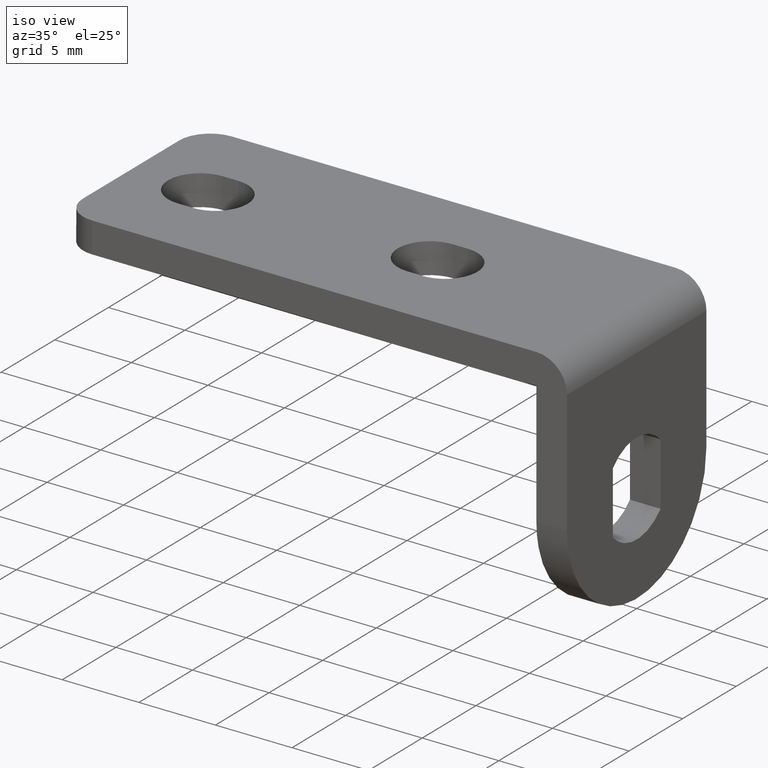
[diagram: clean part render]
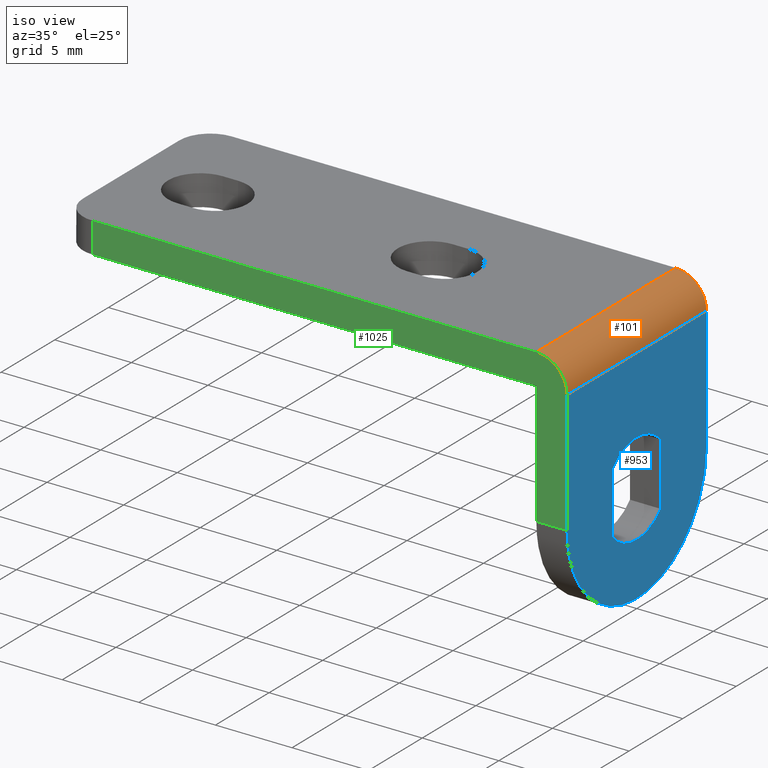
[diagram: same view with three faces highlighted in distinct colors, each labeled with its STEP entity id]
A machine part, iso view with three faces highlighted in distinct colors.
Their STEP definitions:

[orange] entity #101 — the highlighted face is a freeform B-spline surface patch.
#41=CARTESIAN_POINT('',(-2.087238774730669,6.825000000000002,9.998096443163716));
#42=CARTESIAN_POINT('',(-2.087238774730669,-6.833125000000001,9.998096443163719));
#43=CARTESIAN_POINT('',(0.152120528918077,6.825000000000000,10.095868981871966));
#44=CARTESIAN_POINT('',(0.152120528918077,-6.833125000000001,10.095868981871970));
#45=CARTESIAN_POINT('',(-0.004914173536164,6.824999999999999,7.859883815912952));
#46=CARTESIAN_POINT('',(-0.004914173536164,-6.833125000000003,7.859883815912955));
#54=(BOUNDED_SURFACE()B_SPLINE_SURFACE(1,2,((#41,#43,#45),(#42,#44,#46)),.UNSPECIFIED.,.F.,.F.,.U.)B_SPLINE_SURFACE_WITH_KNOTS((2,2),(3,3),(0.0,13.658125000000000),(0.0,3.583485079683971),.UNSPECIFIED.)GEOMETRIC_REPRESENTATION_ITEM()RATIONAL_B_SPLINE_SURFACE(((1.0,0.664513898535122,0.996233561259061),(1.0,0.664513898535122,0.996233561259061)))REPRESENTATION_ITEM('')SURFACE());
#55=CARTESIAN_POINT('',(0.0,-6.500000000000000,8.0));
#56=VERTEX_POINT('',#55);
#57=CARTESIAN_POINT('',(-2.0,-6.500000000000000,10.0));
#58=VERTEX_POINT('',#57);
#59=CARTESIAN_POINT('',(0.0,-6.500000000000000,8.0));
#60=CARTESIAN_POINT('',(0.0,-6.500000000000001,10.000000000000002));
#61=CARTESIAN_POINT('',(-2.0,-6.500000000000000,10.0));
#69=(BOUNDED_CURVE()B_SPLINE_CURVE(2,(#59,#60,#61),.UNSPECIFIED.,.F.,.U.)CURVE()GEOMETRIC_REPRESENTATION_ITEM()QUASI_UNIFORM_CURVE()RATIONAL_B_SPLINE_CURVE((1.0,0.707106781186548,1.0))REPRESENTATION_ITEM(''));
#70=EDGE_CURVE('',#56,#58,#69,.T.);
#71=ORIENTED_EDGE('',*,*,#70,.F.);
#72=CARTESIAN_POINT('',(0.0,6.500000000000000,8.0));
#73=VERTEX_POINT('',#72);
#74=CARTESIAN_POINT('',(0.0,6.500000000000000,8.0));
#75=CARTESIAN_POINT('',(0.0,-6.500000000000000,8.0));
#76=QUASI_UNIFORM_CURVE('',1,(#74,#75),.UNSPECIFIED.,.F.,.U.);
#77=EDGE_CURVE('',#73,#56,#76,.T.);
#78=ORIENTED_EDGE('',*,*,#77,.F.);
#79=CARTESIAN_POINT('',(-2.0,6.500000000000000,10.0));
#80=VERTEX_POINT('',#79);
#81=CARTESIAN_POINT('',(-2.0,6.500000000000000,10.0));
#82=CARTESIAN_POINT('',(0.0,6.500000000000001,10.000000000000002));
#83=CARTESIAN_POINT('',(0.0,6.500000000000000,8.0));
#91=(BOUNDED_CURVE()B_SPLINE_CURVE(2,(#81,#82,#83),.UNSPECIFIED.,.F.,.U.)CURVE()GEOMETRIC_REPRESENTATION_ITEM()QUASI_UNIFORM_CURVE()RATIONAL_B_SPLINE_CURVE((1.0,0.707106781186548,1.0))REPRESENTATION_ITEM(''));
#92=EDGE_CURVE('',#80,#73,#91,.T.);
#93=ORIENTED_EDGE('',*,*,#92,.F.);
#94=CARTESIAN_POINT('',(-2.0,-6.500000000000000,10.0));
#95=CARTESIAN_POINT('',(-2.0,6.500000000000000,10.0));
#96=QUASI_UNIFORM_CURVE('',1,(#94,#95),.UNSPECIFIED.,.F.,.U.);
#97=EDGE_CURVE('',#58,#80,#96,.T.);
#98=ORIENTED_EDGE('',*,*,#97,.F.);
#99=EDGE_LOOP('',(#71,#78,#93,#98));
#100=FACE_OUTER_BOUND('',#99,.T.);
#101=ADVANCED_FACE('',(#100),#54,.T.);

[blue] entity #953 — the highlighted face is a freeform B-spline surface patch.
#55=CARTESIAN_POINT('',(0.0,-6.500000000000000,8.0));
#56=VERTEX_POINT('',#55);
#72=CARTESIAN_POINT('',(0.0,6.500000000000000,8.0));
#73=VERTEX_POINT('',#72);
#74=CARTESIAN_POINT('',(0.0,6.500000000000000,8.0));
#75=CARTESIAN_POINT('',(0.0,-6.500000000000000,8.0));
#76=QUASI_UNIFORM_CURVE('',1,(#74,#75),.UNSPECIFIED.,.F.,.U.);
#77=EDGE_CURVE('',#73,#56,#76,.T.);
#222=CARTESIAN_POINT('',(0.0,-2.225000000000000,2.049390153191810));
#223=VERTEX_POINT('',#222);
#229=CARTESIAN_POINT('',(0.0,-2.225000000000000,-2.049390153191900));
#230=VERTEX_POINT('',#229);
#231=CARTESIAN_POINT('',(0.0,-2.225000000000000,-2.049390153191900));
#232=CARTESIAN_POINT('',(0.0,-2.225000000000000,2.049390153191810));
#233=QUASI_UNIFORM_CURVE('',1,(#231,#232),.UNSPECIFIED.,.F.,.U.);
#234=EDGE_CURVE('',#230,#223,#233,.T.);
#276=CARTESIAN_POINT('',(0.0,2.225000000000000,-2.049390153191895));
#277=VERTEX_POINT('',#276);
#278=CARTESIAN_POINT('',(0.0,2.225000000000000,-2.049390153191895));
#279=CARTESIAN_POINT('',(0.0,2.066242211879372,-2.221812543929323));
#280=CARTESIAN_POINT('',(0.0,1.698452012505978,-2.538034670305128));
#281=CARTESIAN_POINT('',(0.0,1.078955045574241,-2.853789182332903));
#282=CARTESIAN_POINT('',(0.0,0.482099903002205,-3.003180467352935));
#283=CARTESIAN_POINT('',(0.0,-0.117421838410509,-3.041961972614474));
#284=CARTESIAN_POINT('',(0.0,-0.676413852054989,-2.969393750708280));
#285=CARTESIAN_POINT('',(0.0,-1.195729768616037,-2.791864122946298));
#286=CARTESIAN_POINT('',(0.0,-1.715635770027413,-2.518412250542273));
#287=CARTESIAN_POINT('',(0.0,-2.039810292791877,-2.250592039869015));
#288=CARTESIAN_POINT('',(0.0,-2.225000000000000,-2.049390153191900));
#289=B_SPLINE_CURVE_WITH_KNOTS('',3,(#278,#279,#280,#281,#282,#283,#284,#285,#286,#287,#288),.UNSPECIFIED.,.F.,.U.,(4,1,1,1,1,1,1,1,4),(8.069619E-009,0.703134735984326,1.445345635704363,2.070368489043807,2.539117460991305,3.242255531745626,3.750085249541511,4.179782768870926,5.000113255541421),.UNSPECIFIED.);
#290=EDGE_CURVE('',#277,#230,#289,.T.);
#313=CARTESIAN_POINT('',(0.0,2.225000000000000,2.049390153191810));
#314=VERTEX_POINT('',#313);
#315=CARTESIAN_POINT('',(0.0,2.225000000000000,2.049390153191810));
#316=CARTESIAN_POINT('',(0.0,2.225000000000000,-2.049390153191895));
#317=QUASI_UNIFORM_CURVE('',1,(#315,#316),.UNSPECIFIED.,.F.,.U.);
#318=EDGE_CURVE('',#314,#277,#317,.T.);
#358=CARTESIAN_POINT('',(0.0,-2.225000000000000,2.049390153191810));
#359=CARTESIAN_POINT('',(0.0,-2.031003567918119,2.260181486694275));
#360=CARTESIAN_POINT('',(0.0,-1.653834101651891,2.567691548098811));
#361=CARTESIAN_POINT('',(0.0,-1.087167711786510,2.838267559281084));
#362=CARTESIAN_POINT('',(0.0,-0.647764746313776,2.963475253012602));
#363=CARTESIAN_POINT('',(0.0,-0.260783447094791,3.021370158692325));
#364=CARTESIAN_POINT('',(0.0,0.143574439275667,3.031818423133955));
#365=CARTESIAN_POINT('',(0.0,0.649490992202454,2.972787639983153));
#366=CARTESIAN_POINT('',(0.0,1.149529203839073,2.816207637508748));
#367=CARTESIAN_POINT('',(0.0,1.715630253416153,2.518397358575006));
#368=CARTESIAN_POINT('',(0.0,2.039812062219553,2.250596860866705));
#369=CARTESIAN_POINT('',(0.0,2.225000000000000,2.049390153191810));
#370=B_SPLINE_CURVE_WITH_KNOTS('',3,(#358,#359,#360,#361,#362,#363,#364,#365,#366,#367,#368,#369),.UNSPECIFIED.,.F.,.U.,(4,1,1,1,1,1,1,1,1,4),(8.069359E-009,0.859390450907211,1.445345635704413,1.875044543677592,2.226624659416981,2.617239591922656,3.086007354720771,3.750085249541642,4.179782768871053,5.000113255541534),.UNSPECIFIED.);
#371=EDGE_CURVE('',#223,#314,#370,.T.);
#897=CARTESIAN_POINT('',(0.0,7.149349974803477,8.724274971896184));
#898=CARTESIAN_POINT('',(0.0,-7.149350323490650,8.724274971896184));
#899=CARTESIAN_POINT('',(0.0,7.149349974803477,-7.224275360816481));
#900=CARTESIAN_POINT('',(0.0,-7.149350323490650,-7.224275360816481));
#901=B_SPLINE_SURFACE_WITH_KNOTS('',1,1,((#897,#899),(#898,#900)),.UNSPECIFIED.,.F.,.F.,.U.,(2,2),(2,2),(0.0,14.298700298294129),(0.0,15.948550332712671),.UNSPECIFIED.);
#902=CARTESIAN_POINT('',(0.0,6.500000000000000,-1.193991E-015));
#903=VERTEX_POINT('',#902);
#904=CARTESIAN_POINT('',(0.0,6.500000000000000,8.0));
#905=CARTESIAN_POINT('',(0.0,6.500000000000000,-1.193991E-015));
#906=QUASI_UNIFORM_CURVE('',1,(#904,#905),.UNSPECIFIED.,.F.,.U.);
#907=EDGE_CURVE('',#73,#903,#906,.T.);
#908=ORIENTED_EDGE('',*,*,#907,.F.);
#909=ORIENTED_EDGE('',*,*,#77,.T.);
#910=CARTESIAN_POINT('',(0.0,-6.500000000000000,1.193991E-015));
#911=VERTEX_POINT('',#910);
#912=CARTESIAN_POINT('',(0.0,-6.500000000000000,1.193991E-015));
#913=CARTESIAN_POINT('',(0.0,-6.500000000000000,8.0));
#914=QUASI_UNIFORM_CURVE('',1,(#912,#913),.UNSPECIFIED.,.F.,.U.);
#915=EDGE_CURVE('',#911,#56,#914,.T.);
#916=ORIENTED_EDGE('',*,*,#915,.F.);
#917=CARTESIAN_POINT('',(0.0,6.500000000000000,-1.193991E-015));
#918=CARTESIAN_POINT('',(0.0,6.500025426505443,-0.345656446081939));
#919=CARTESIAN_POINT('',(0.0,6.448974651867337,-0.983778392165899));
#920=CARTESIAN_POINT('',(0.0,6.251026567345239,-1.840647117348953));
#921=CARTESIAN_POINT('',(0.0,5.936241192412015,-2.703762827278696));
#922=CARTESIAN_POINT('',(0.0,5.524925572956370,-3.467627936959101));
#923=CARTESIAN_POINT('',(0.0,4.969690109728950,-4.216236978145131));
#924=CARTESIAN_POINT('',(0.0,4.315125921394685,-4.899589401285813));
#925=CARTESIAN_POINT('',(0.0,3.557235209760538,-5.468917830945390));
#926=CARTESIAN_POINT('',(0.0,2.702830228743737,-5.932341433639144));
#927=CARTESIAN_POINT('',(0.0,1.843445932946580,-6.260829180859277));
#928=CARTESIAN_POINT('',(0.0,0.786592608404086,-6.484583160436219));
#929=CARTESIAN_POINT('',(0.0,-0.200689661954958,-6.520947739786201));
#930=CARTESIAN_POINT('',(0.0,-1.127039245872306,-6.418178681481102));
#931=CARTESIAN_POINT('',(0.0,-1.969723925902083,-6.218081066704937));
#932=CARTESIAN_POINT('',(0.0,-2.775431344360477,-5.898727223591263));
#933=CARTESIAN_POINT('',(0.0,-3.519434936810770,-5.483255877297874));
#934=CARTESIAN_POINT('',(0.0,-4.068859218736186,-5.083557429482355));
#935=CARTESIAN_POINT('',(0.0,-4.643752771220876,-4.568899328712618));
#936=CARTESIAN_POINT('',(0.0,-5.255342519951721,-3.881574613886546));
#937=CARTESIAN_POINT('',(0.0,-5.815967240619005,-2.971737441786986));
#938=CARTESIAN_POINT('',(0.0,-6.184935925254775,-2.057103988273804));
#939=CARTESIAN_POINT('',(0.0,-6.433183354544333,-1.103420147426776));
#940=CARTESIAN_POINT('',(0.0,-6.500055099206045,-0.425427942202473));
#941=CARTESIAN_POINT('',(0.0,-6.500000000000000,1.193991E-015));
#942=B_SPLINE_CURVE_WITH_KNOTS('',3,(#917,#918,#919,#920,#921,#922,#923,#924,#925,#926,#927,#928,#929,#930,#931,#932,#933,#934,#935,#936,#937,#938,#939,#940,#941),.UNSPECIFIED.,.F.,.U.,(4,1,1,1,1,1,1,1,1,1,1,1,1,1,1,1,1,1,1,1,1,1,4),(0.000000055785154,1.036965685181901,1.914394275590116,2.632313006088687,3.788931591196974,4.506843486594113,5.424167088487160,6.620673878396687,7.338584896999844,8.335682672362676,9.372656980965527,10.569121763500840,11.287035985506140,12.164482380999440,13.161563963835450,13.879477546868840,14.717032051945189,15.195637910634380,16.192728185973579,17.469012232420258,18.386327123504000,19.144114229800710,20.420384281945129),.UNSPECIFIED.);
#943=EDGE_CURVE('',#903,#911,#942,.T.);
#944=ORIENTED_EDGE('',*,*,#943,.F.);
#945=EDGE_LOOP('',(#908,#909,#916,#944));
#946=FACE_OUTER_BOUND('',#945,.T.);
#947=ORIENTED_EDGE('',*,*,#234,.T.);
#948=ORIENTED_EDGE('',*,*,#371,.T.);
#949=ORIENTED_EDGE('',*,*,#318,.T.);
#950=ORIENTED_EDGE('',*,*,#290,.T.);
#951=EDGE_LOOP('',(#947,#948,#949,#950));
#952=FACE_BOUND('',#951,.T.);
#953=ADVANCED_FACE('',(#946,#952),#901,.T.);

[green] entity #1025 — the highlighted face is a freeform B-spline surface patch.
#55=CARTESIAN_POINT('',(0.0,-6.500000000000000,8.0));
#56=VERTEX_POINT('',#55);
#57=CARTESIAN_POINT('',(-2.0,-6.500000000000000,10.0));
#58=VERTEX_POINT('',#57);
#59=CARTESIAN_POINT('',(0.0,-6.500000000000000,8.0));
#60=CARTESIAN_POINT('',(0.0,-6.500000000000001,10.000000000000002));
#61=CARTESIAN_POINT('',(-2.0,-6.500000000000000,10.0));
#69=(BOUNDED_CURVE()B_SPLINE_CURVE(2,(#59,#60,#61),.UNSPECIFIED.,.F.,.U.)CURVE()GEOMETRIC_REPRESENTATION_ITEM()QUASI_UNIFORM_CURVE()RATIONAL_B_SPLINE_CURVE((1.0,0.707106781186548,1.0))REPRESENTATION_ITEM(''));
#70=EDGE_CURVE('',#56,#58,#69,.T.);
#169=CARTESIAN_POINT('',(-31.0,-6.500000000000000,8.0));
#170=VERTEX_POINT('',#169);
#184=CARTESIAN_POINT('',(-31.0,-6.500000000000000,10.0));
#185=VERTEX_POINT('',#184);
#186=CARTESIAN_POINT('',(-31.0,-6.500000000000000,10.0));
#187=CARTESIAN_POINT('',(-31.0,-6.500000000000000,8.0));
#188=QUASI_UNIFORM_CURVE('',1,(#186,#187),.UNSPECIFIED.,.F.,.U.);
#189=EDGE_CURVE('',#185,#170,#188,.T.);
#806=CARTESIAN_POINT('',(-2.0,-6.500000000000000,1.193991E-015));
#807=VERTEX_POINT('',#806);
#835=CARTESIAN_POINT('',(-2.0,-6.500000000000000,8.0));
#836=VERTEX_POINT('',#835);
#837=CARTESIAN_POINT('',(-2.0,-6.500000000000000,1.193991E-015));
#838=CARTESIAN_POINT('',(-2.0,-6.500000000000000,8.0));
#839=QUASI_UNIFORM_CURVE('',1,(#837,#838),.UNSPECIFIED.,.F.,.U.);
#840=EDGE_CURVE('',#807,#836,#839,.T.);
#868=CARTESIAN_POINT('',(-31.0,-6.500000000000000,8.0));
#869=CARTESIAN_POINT('',(-2.0,-6.500000000000000,8.0));
#870=QUASI_UNIFORM_CURVE('',1,(#868,#869),.UNSPECIFIED.,.F.,.U.);
#871=EDGE_CURVE('',#170,#836,#870,.T.);
#910=CARTESIAN_POINT('',(0.0,-6.500000000000000,1.193991E-015));
#911=VERTEX_POINT('',#910);
#912=CARTESIAN_POINT('',(0.0,-6.500000000000000,1.193991E-015));
#913=CARTESIAN_POINT('',(0.0,-6.500000000000000,8.0));
#914=QUASI_UNIFORM_CURVE('',1,(#912,#913),.UNSPECIFIED.,.F.,.U.);
#915=EDGE_CURVE('',#911,#56,#914,.T.);
#959=CARTESIAN_POINT('',(-31.0,-6.500000000000000,10.0));
#960=CARTESIAN_POINT('',(-2.0,-6.500000000000000,10.0));
#961=QUASI_UNIFORM_CURVE('',1,(#959,#960),.UNSPECIFIED.,.F.,.U.);
#962=EDGE_CURVE('',#185,#58,#961,.T.);
#1007=CARTESIAN_POINT('',(-32.548449939915997,-6.500000000000000,-0.499499980618059));
#1008=CARTESIAN_POINT('',(-32.548449939915997,-6.500000000000000,10.499500248838959));
#1009=CARTESIAN_POINT('',(1.548450771400781,-6.500000000000000,-0.499499980618059));
#1010=CARTESIAN_POINT('',(1.548450771400781,-6.500000000000000,10.499500248838959));
#1011=B_SPLINE_SURFACE_WITH_KNOTS('',1,1,((#1007,#1009),(#1008,#1010)),.UNSPECIFIED.,.F.,.F.,.U.,(2,2),(2,2),(0.0,10.999000229457019),(0.0,34.096900711316778),.UNSPECIFIED.);
#1012=ORIENTED_EDGE('',*,*,#915,.T.);
#1013=ORIENTED_EDGE('',*,*,#70,.T.);
#1014=ORIENTED_EDGE('',*,*,#962,.F.);
#1015=ORIENTED_EDGE('',*,*,#189,.T.);
#1016=ORIENTED_EDGE('',*,*,#871,.T.);
#1017=ORIENTED_EDGE('',*,*,#840,.F.);
#1018=CARTESIAN_POINT('',(-2.0,-6.500000000000000,1.193991E-015));
#1019=CARTESIAN_POINT('',(0.0,-6.500000000000000,1.193991E-015));
#1020=QUASI_UNIFORM_CURVE('',1,(#1018,#1019),.UNSPECIFIED.,.F.,.U.);
#1021=EDGE_CURVE('',#807,#911,#1020,.T.);
#1022=ORIENTED_EDGE('',*,*,#1021,.T.);
#1023=EDGE_LOOP('',(#1012,#1013,#1014,#1015,#1016,#1017,#1022));
#1024=FACE_OUTER_BOUND('',#1023,.T.);
#1025=ADVANCED_FACE('',(#1024),#1011,.F.);